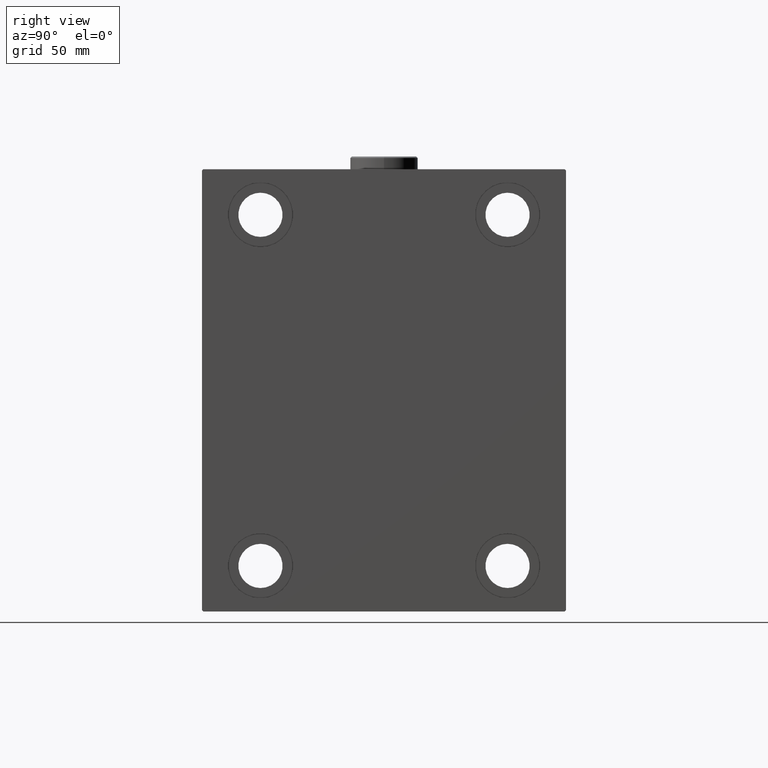
[diagram: clean part render]
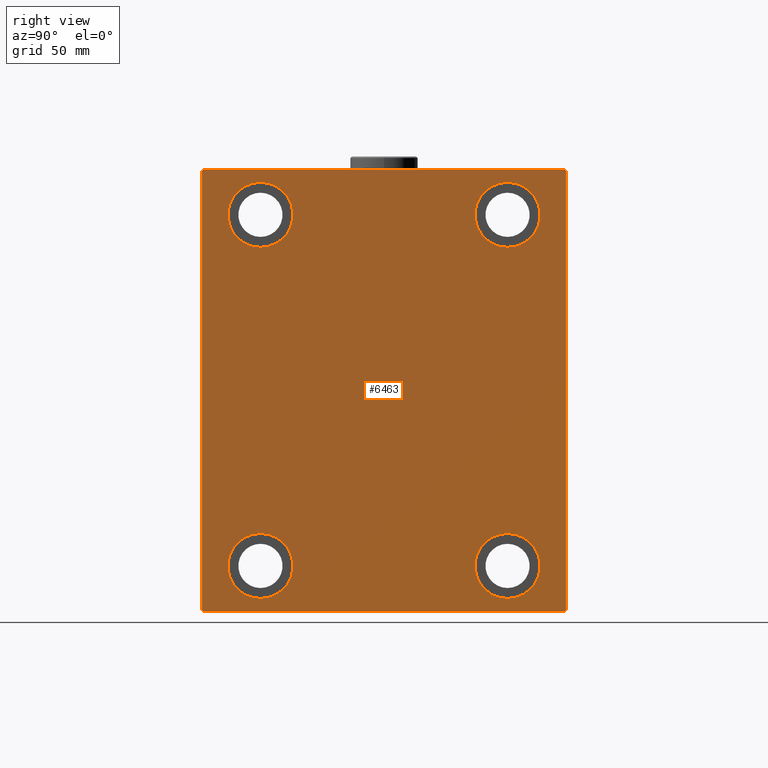
[diagram: same view with one face highlighted and labeled with its STEP entity id]
A machine part, right view. The second image highlights one B-rep face of the part: STEP entity #6463.
In plain terms, the highlighted planar face has unit normal (1, 0, 0).
Its self-contained STEP definition (entity closure, byte-faithful):
#56 = VERTEX_POINT ( 'NONE', #35783 ) ;
#103 = CARTESIAN_POINT ( 'NONE',  ( 155.0000000000000000, 70.00000000000002842, -85.00000000000001421 ) ) ;
#587 = CARTESIAN_POINT ( 'NONE',  ( 155.0000000000000000, -47.49999999999997868, 55.00000000000000000 ) ) ;
#600 = VERTEX_POINT ( 'NONE', #31953 ) ;
#1271 = EDGE_CURVE ( 'NONE', #19499, #600, #17359, .T. ) ;
#1599 = DIRECTION ( 'NONE',  ( 0.000000000000000000, 0.000000000000000000, -1.000000000000000000 ) ) ;
#3422 = CIRCLE ( 'NONE', #31256, 12.49999999999999645 ) ;
#3551 = AXIS2_PLACEMENT_3D ( 'NONE', #32312, #21567, #35533 ) ;
#3803 = DIRECTION ( 'NONE',  ( -1.000000000000000000, -0.000000000000000000, -0.000000000000000000 ) ) ;
#3910 = DIRECTION ( 'NONE',  ( 0.000000000000000000, -1.000000000000000000, -9.912705577010325549E-17 ) ) ;
#4436 = VERTEX_POINT ( 'NONE', #35106 ) ;
#4722 = ORIENTED_EDGE ( 'NONE', *, *, #37590, .T. ) ;
#5000 = ORIENTED_EDGE ( 'NONE', *, *, #41859, .T. ) ;
#5016 = CARTESIAN_POINT ( 'NONE',  ( 155.0000000000000000, 70.00000000000001421, 84.50000000000001421 ) ) ;
#5079 = ORIENTED_EDGE ( 'NONE', *, *, #8655, .T. ) ;
#5475 = FACE_OUTER_BOUND ( 'NONE', #22835, .T. ) ;
#6024 = DIRECTION ( 'NONE',  ( -1.000000000000000000, -0.000000000000000000, -0.000000000000000000 ) ) ;
#6100 = CARTESIAN_POINT ( 'NONE',  ( 155.0000000000000000, 47.50000000000000711, -55.00000000000000711 ) ) ;
#6145 = EDGE_CURVE ( 'NONE', #38356, #12165, #44558, .T. ) ;
#6288 = DIRECTION ( 'NONE',  ( 0.000000000000000000, 1.000000000000000000, 9.912705577010325549E-17 ) ) ;
#6456 = VECTOR ( 'NONE', #3910, 1000.000000000000000 ) ;
#6463 = ADVANCED_FACE ( 'NONE', ( #15141, #22926, #15599, #39436, #5475 ), #35995, .T. ) ;
#6505 = VERTEX_POINT ( 'NONE', #44907 ) ;
#6679 = AXIS2_PLACEMENT_3D ( 'NONE', #10739, #38480, #17627 ) ;
#6704 = CARTESIAN_POINT ( 'NONE',  ( 155.0000000000000000, -77.25000000000099476, -77.24999999999884892 ) ) ;
#6928 = DIRECTION ( 'NONE',  ( -0.000000000000000000, 0.7071067811865376918, -0.7071067811865573427 ) ) ;
#7094 = AXIS2_PLACEMENT_3D ( 'NONE', #39197, #8221, #11692 ) ;
#7234 = CARTESIAN_POINT ( 'NONE',  ( 155.0000000000000000, 47.50000000000000711, -67.50000000000000000 ) ) ;
#7851 = CARTESIAN_POINT ( 'NONE',  ( 155.0000000000000000, 77.24999999999907629, -77.25000000000123634 ) ) ;
#7924 = AXIS2_PLACEMENT_3D ( 'NONE', #7234, #3803, #44846 ) ;
#8221 = DIRECTION ( 'NONE',  ( -1.000000000000000000, -0.000000000000000000, -0.000000000000000000 ) ) ;
#8655 = EDGE_CURVE ( 'NONE', #4436, #44386, #38130, .T. ) ;
#8887 = AXIS2_PLACEMENT_3D ( 'NONE', #30416, #34317, #30193 ) ;
#9524 = ORIENTED_EDGE ( 'NONE', *, *, #40703, .T. ) ;
#10423 = DIRECTION ( 'NONE',  ( 0.000000000000000000, -8.163404592832031500E-17, 1.000000000000000000 ) ) ;
#10739 = CARTESIAN_POINT ( 'NONE',  ( 155.0000000000000000, 47.50000000000000711, 67.50000000000000000 ) ) ;
#10823 = ORIENTED_EDGE ( 'NONE', *, *, #26563, .T. ) ;
#10865 = CARTESIAN_POINT ( 'NONE',  ( 155.0000000000000000, -47.49999999999999289, -55.00000000000000711 ) ) ;
#10871 = LINE ( 'NONE', #7851, #38246 ) ;
#11692 = DIRECTION ( 'NONE',  ( 0.000000000000000000, 0.000000000000000000, 1.000000000000000000 ) ) ;
#11891 = ORIENTED_EDGE ( 'NONE', *, *, #27421, .T. ) ;
#11941 = CARTESIAN_POINT ( 'NONE',  ( 155.0000000000000000, -69.99999999999998579, 84.99999999999998579 ) ) ;
#12165 = VERTEX_POINT ( 'NONE', #6100 ) ;
#13157 = DIRECTION ( 'NONE',  ( 0.000000000000000000, 0.000000000000000000, 1.000000000000000000 ) ) ;
#13181 = CARTESIAN_POINT ( 'NONE',  ( 155.0000000000000000, 47.50000000000000711, 67.50000000000000000 ) ) ;
#13431 = VERTEX_POINT ( 'NONE', #31203 ) ;
#13448 = CARTESIAN_POINT ( 'NONE',  ( 155.0000000000000000, -69.50000000000001421, -85.00000000000002842 ) ) ;
#13872 = LINE ( 'NONE', #103, #32811 ) ;
#13962 = EDGE_LOOP ( 'NONE', ( #15603, #28087 ) ) ;
#15141 = FACE_BOUND ( 'NONE', #29421, .T. ) ;
#15599 = FACE_BOUND ( 'NONE', #43997, .T. ) ;
#15603 = ORIENTED_EDGE ( 'NONE', *, *, #1271, .T. ) ;
#15938 = EDGE_CURVE ( 'NONE', #35571, #56, #41385, .T. ) ;
#16113 = CIRCLE ( 'NONE', #42439, 12.50000000000001066 ) ;
#16357 = CARTESIAN_POINT ( 'NONE',  ( 155.0000000000000000, -47.49999999999997868, 67.50000000000000000 ) ) ;
#16636 = ORIENTED_EDGE ( 'NONE', *, *, #26604, .T. ) ;
#16655 = DIRECTION ( 'NONE',  ( -0.000000000000000000, -0.7071067811865376918, 0.7071067811865573427 ) ) ;
#17266 = CARTESIAN_POINT ( 'NONE',  ( 155.0000000000000000, 69.50000000000004263, 85.00000000000000000 ) ) ;
#17359 = CIRCLE ( 'NONE', #7094, 12.50000000000001066 ) ;
#17627 = DIRECTION ( 'NONE',  ( 0.000000000000000000, 0.000000000000000000, 1.000000000000000000 ) ) ;
#19221 = DIRECTION ( 'NONE',  ( -1.000000000000000000, -0.000000000000000000, -0.000000000000000000 ) ) ;
#19499 = VERTEX_POINT ( 'NONE', #587 ) ;
#20552 = DIRECTION ( 'NONE',  ( 0.000000000000000000, -0.7071067811865672237, -0.7071067811865279218 ) ) ;
#21426 = DIRECTION ( 'NONE',  ( -0.000000000000000000, 0.7071067811865573427, 0.7071067811865376918 ) ) ;
#21567 = DIRECTION ( 'NONE',  ( -1.000000000000000000, -0.000000000000000000, -0.000000000000000000 ) ) ;
#22097 = CIRCLE ( 'NONE', #8887, 12.49999999999999645 ) ;
#22835 = EDGE_LOOP ( 'NONE', ( #10823, #27228, #31769, #5079, #26896, #5000, #11891, #44824 ) ) ;
#22926 = FACE_BOUND ( 'NONE', #13962, .T. ) ;
#23011 = EDGE_CURVE ( 'NONE', #27468, #6505, #3422, .T. ) ;
#23510 = AXIS2_PLACEMENT_3D ( 'NONE', #13181, #29478, #32909 ) ;
#23566 = CARTESIAN_POINT ( 'NONE',  ( 155.0000000000000000, -47.49999999999999289, -67.50000000000000000 ) ) ;
#23808 = VERTEX_POINT ( 'NONE', #17266 ) ;
#24793 = ORIENTED_EDGE ( 'NONE', *, *, #6145, .T. ) ;
#25434 = CARTESIAN_POINT ( 'NONE',  ( 155.0000000000000000, 70.00000000000001421, 85.00000000000000000 ) ) ;
#25491 = CIRCLE ( 'NONE', #3551, 12.49999999999999645 ) ;
#25512 = AXIS2_PLACEMENT_3D ( 'NONE', #29547, #43078, #1599 ) ;
#26400 = CIRCLE ( 'NONE', #23510, 12.50000000000001066 ) ;
#26563 = EDGE_CURVE ( 'NONE', #23808, #35571, #28421, .T. ) ;
#26604 = EDGE_CURVE ( 'NONE', #12165, #38356, #25491, .T. ) ;
#26896 = ORIENTED_EDGE ( 'NONE', *, *, #34674, .T. ) ;
#27228 = ORIENTED_EDGE ( 'NONE', *, *, #15938, .T. ) ;
#27421 = EDGE_CURVE ( 'NONE', #43272, #39421, #13872, .T. ) ;
#27468 = VERTEX_POINT ( 'NONE', #10865 ) ;
#28087 = ORIENTED_EDGE ( 'NONE', *, *, #35501, .T. ) ;
#28421 = LINE ( 'NONE', #25434, #6456 ) ;
#28992 = EDGE_CURVE ( 'NONE', #39421, #23808, #33827, .T. ) ;
#29421 = EDGE_LOOP ( 'NONE', ( #24793, #16636 ) ) ;
#29435 = VECTOR ( 'NONE', #41481, 1000.000000000000000 ) ;
#29478 = DIRECTION ( 'NONE',  ( -1.000000000000000000, -0.000000000000000000, -0.000000000000000000 ) ) ;
#29547 = CARTESIAN_POINT ( 'NONE',  ( 155.0000000000000000, 0.000000000000000000, 0.000000000000000000 ) ) ;
#30099 = CIRCLE ( 'NONE', #6679, 12.50000000000001066 ) ;
#30162 = CARTESIAN_POINT ( 'NONE',  ( 155.0000000000000000, 77.25000000000099476, 77.24999999999884892 ) ) ;
#30193 = DIRECTION ( 'NONE',  ( 0.000000000000000000, 0.000000000000000000, 1.000000000000000000 ) ) ;
#30416 = CARTESIAN_POINT ( 'NONE',  ( 155.0000000000000000, -47.49999999999999289, -67.50000000000000000 ) ) ;
#30817 = LINE ( 'NONE', #45026, #41740 ) ;
#31061 = CARTESIAN_POINT ( 'NONE',  ( 155.0000000000000000, -77.24999999999803890, 77.25000000000234479 ) ) ;
#31203 = CARTESIAN_POINT ( 'NONE',  ( 155.0000000000000000, 47.50000000000000711, 55.00000000000000000 ) ) ;
#31256 = AXIS2_PLACEMENT_3D ( 'NONE', #23566, #19221, #37082 ) ;
#31769 = ORIENTED_EDGE ( 'NONE', *, *, #42218, .T. ) ;
#31953 = CARTESIAN_POINT ( 'NONE',  ( 155.0000000000000000, -47.49999999999997868, 80.00000000000001421 ) ) ;
#32312 = CARTESIAN_POINT ( 'NONE',  ( 155.0000000000000000, 47.50000000000000711, -67.50000000000000000 ) ) ;
#32349 = VERTEX_POINT ( 'NONE', #36981 ) ;
#32639 = VERTEX_POINT ( 'NONE', #39690 ) ;
#32771 = ORIENTED_EDGE ( 'NONE', *, *, #38530, .T. ) ;
#32811 = VECTOR ( 'NONE', #10423, 1000.000000000000000 ) ;
#32909 = DIRECTION ( 'NONE',  ( 0.000000000000000000, 0.000000000000000000, 1.000000000000000000 ) ) ;
#33827 = LINE ( 'NONE', #30162, #43729 ) ;
#33868 = CARTESIAN_POINT ( 'NONE',  ( 155.0000000000000000, 70.00000000000002842, -84.50000000000007105 ) ) ;
#34317 = DIRECTION ( 'NONE',  ( -1.000000000000000000, -0.000000000000000000, -0.000000000000000000 ) ) ;
#34445 = CARTESIAN_POINT ( 'NONE',  ( 155.0000000000000000, -69.49999999999997158, 84.99999999999998579 ) ) ;
#34674 = EDGE_CURVE ( 'NONE', #44386, #32639, #30817, .T. ) ;
#35106 = CARTESIAN_POINT ( 'NONE',  ( 155.0000000000000000, -69.99999999999998579, -84.50000000000004263 ) ) ;
#35501 = EDGE_CURVE ( 'NONE', #600, #19499, #16113, .T. ) ;
#35533 = DIRECTION ( 'NONE',  ( 0.000000000000000000, 0.000000000000000000, 1.000000000000000000 ) ) ;
#35571 = VERTEX_POINT ( 'NONE', #34445 ) ;
#35783 = CARTESIAN_POINT ( 'NONE',  ( 155.0000000000000000, -69.99999999999998579, 84.49999999999998579 ) ) ;
#35812 = CARTESIAN_POINT ( 'NONE',  ( 155.0000000000000000, 47.50000000000000711, -80.00000000000000000 ) ) ;
#35915 = VECTOR ( 'NONE', #20552, 1000.000000000000000 ) ;
#35995 = PLANE ( 'NONE',  #25512 ) ;
#36981 = CARTESIAN_POINT ( 'NONE',  ( 155.0000000000000000, 47.50000000000000711, 80.00000000000001421 ) ) ;
#37082 = DIRECTION ( 'NONE',  ( 0.000000000000000000, 0.000000000000000000, 1.000000000000000000 ) ) ;
#37590 = EDGE_CURVE ( 'NONE', #13431, #32349, #26400, .T. ) ;
#38130 = LINE ( 'NONE', #6704, #42430 ) ;
#38246 = VECTOR ( 'NONE', #21426, 1000.000000000000114 ) ;
#38356 = VERTEX_POINT ( 'NONE', #35812 ) ;
#38480 = DIRECTION ( 'NONE',  ( -1.000000000000000000, -0.000000000000000000, -0.000000000000000000 ) ) ;
#38530 = EDGE_CURVE ( 'NONE', #32349, #13431, #30099, .T. ) ;
#39197 = CARTESIAN_POINT ( 'NONE',  ( 155.0000000000000000, -47.49999999999997868, 67.50000000000000000 ) ) ;
#39421 = VERTEX_POINT ( 'NONE', #5016 ) ;
#39436 = FACE_BOUND ( 'NONE', #42208, .T. ) ;
#39690 = CARTESIAN_POINT ( 'NONE',  ( 155.0000000000000000, 69.50000000000007105, -85.00000000000001421 ) ) ;
#40703 = EDGE_CURVE ( 'NONE', #6505, #27468, #22097, .T. ) ;
#41385 = LINE ( 'NONE', #31061, #35915 ) ;
#41481 = DIRECTION ( 'NONE',  ( 0.000000000000000000, 0.000000000000000000, -1.000000000000000000 ) ) ;
#41740 = VECTOR ( 'NONE', #6288, 1000.000000000000000 ) ;
#41859 = EDGE_CURVE ( 'NONE', #32639, #43272, #10871, .T. ) ;
#42208 = EDGE_LOOP ( 'NONE', ( #9524, #42251 ) ) ;
#42218 = EDGE_CURVE ( 'NONE', #56, #4436, #43319, .T. ) ;
#42251 = ORIENTED_EDGE ( 'NONE', *, *, #23011, .T. ) ;
#42430 = VECTOR ( 'NONE', #6928, 1000.000000000000114 ) ;
#42439 = AXIS2_PLACEMENT_3D ( 'NONE', #16357, #6024, #13157 ) ;
#43078 = DIRECTION ( 'NONE',  ( 1.000000000000000000, 0.000000000000000000, 0.000000000000000000 ) ) ;
#43272 = VERTEX_POINT ( 'NONE', #33868 ) ;
#43319 = LINE ( 'NONE', #11941, #29435 ) ;
#43729 = VECTOR ( 'NONE', #16655, 1000.000000000000114 ) ;
#43997 = EDGE_LOOP ( 'NONE', ( #4722, #32771 ) ) ;
#44386 = VERTEX_POINT ( 'NONE', #13448 ) ;
#44558 = CIRCLE ( 'NONE', #7924, 12.49999999999999645 ) ;
#44824 = ORIENTED_EDGE ( 'NONE', *, *, #28992, .T. ) ;
#44846 = DIRECTION ( 'NONE',  ( 0.000000000000000000, 0.000000000000000000, 1.000000000000000000 ) ) ;
#44907 = CARTESIAN_POINT ( 'NONE',  ( 155.0000000000000000, -47.49999999999999289, -80.00000000000000000 ) ) ;
#45026 = CARTESIAN_POINT ( 'NONE',  ( 155.0000000000000000, -69.99999999999998579, -85.00000000000002842 ) ) ;